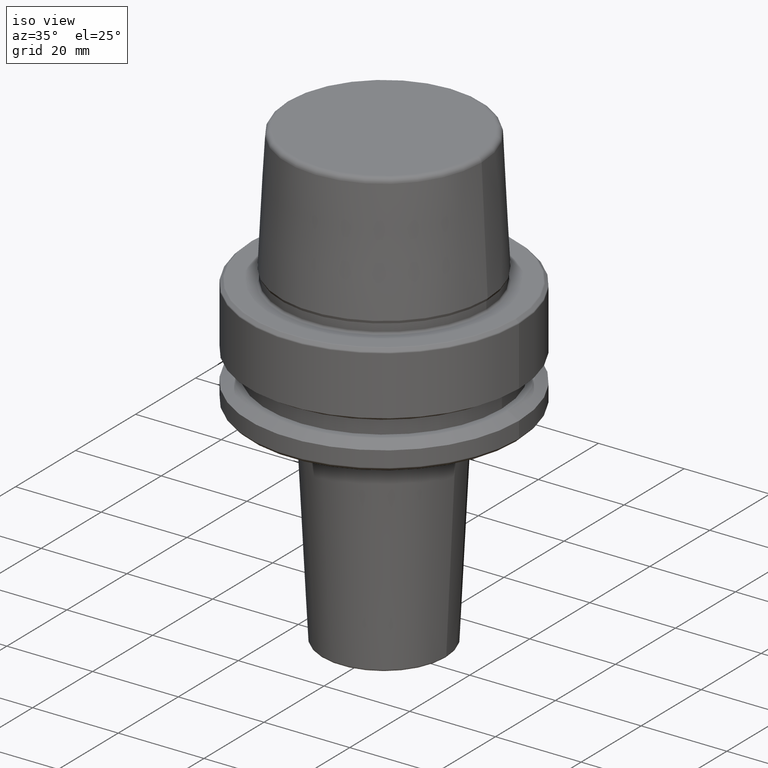
[diagram: clean part render]
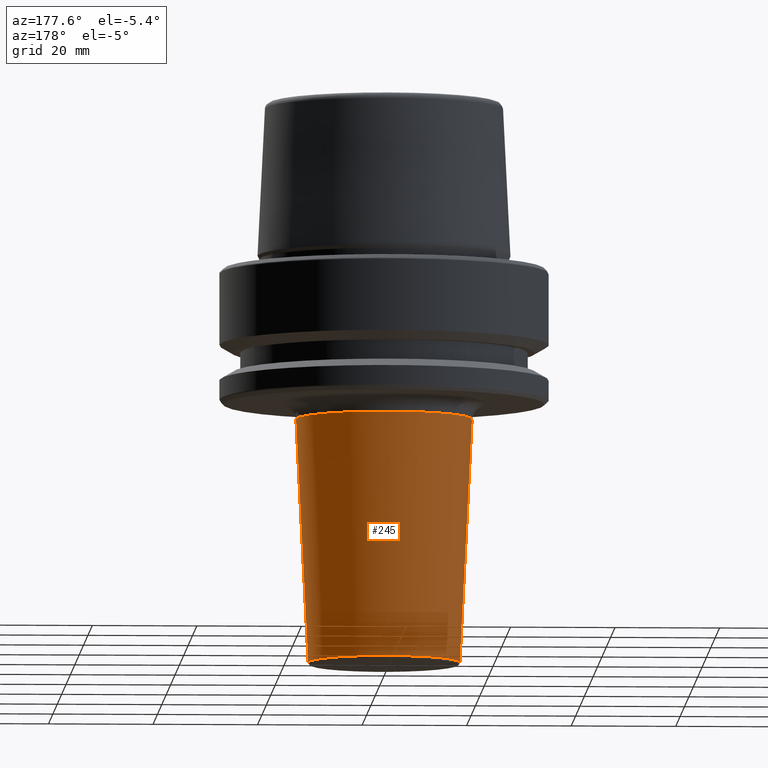
[diagram: tour spotlight — one face highlighted and labeled with its STEP entity id]
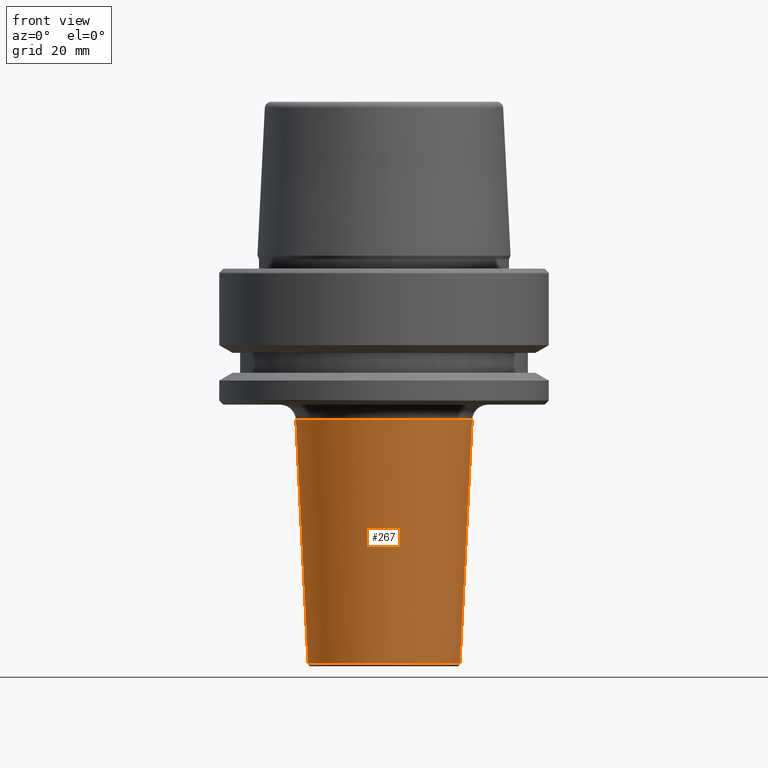
[diagram: tour spotlight — one face highlighted and labeled with its STEP entity id]
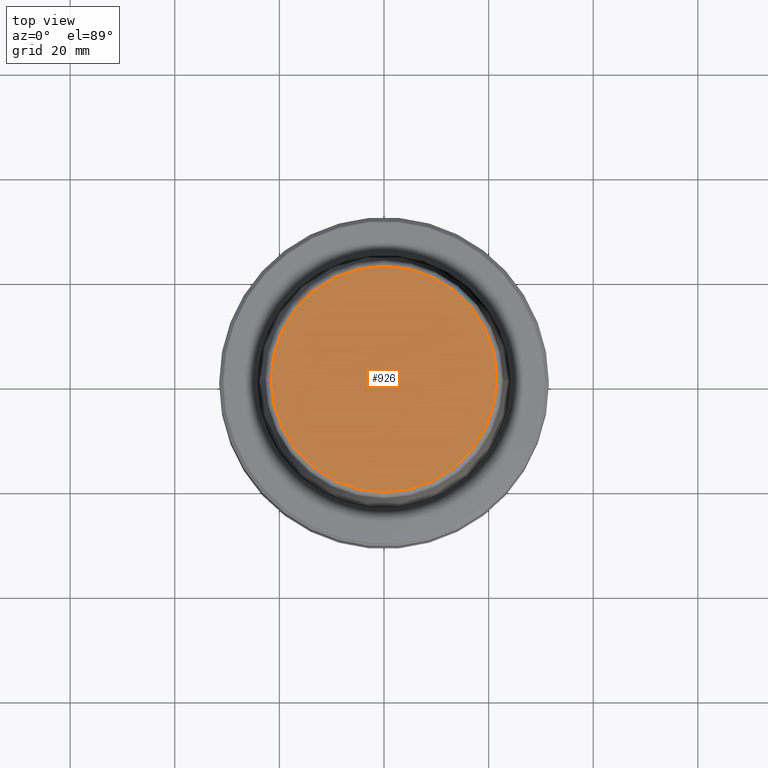
[diagram: tour spotlight — one face highlighted and labeled with its STEP entity id]
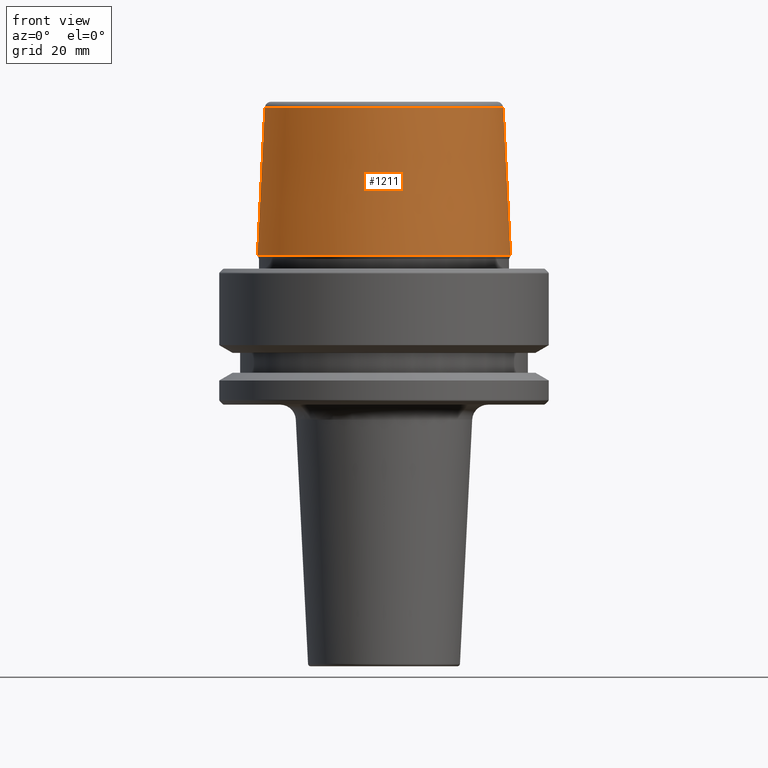
[diagram: tour spotlight — one face highlighted and labeled with its STEP entity id]
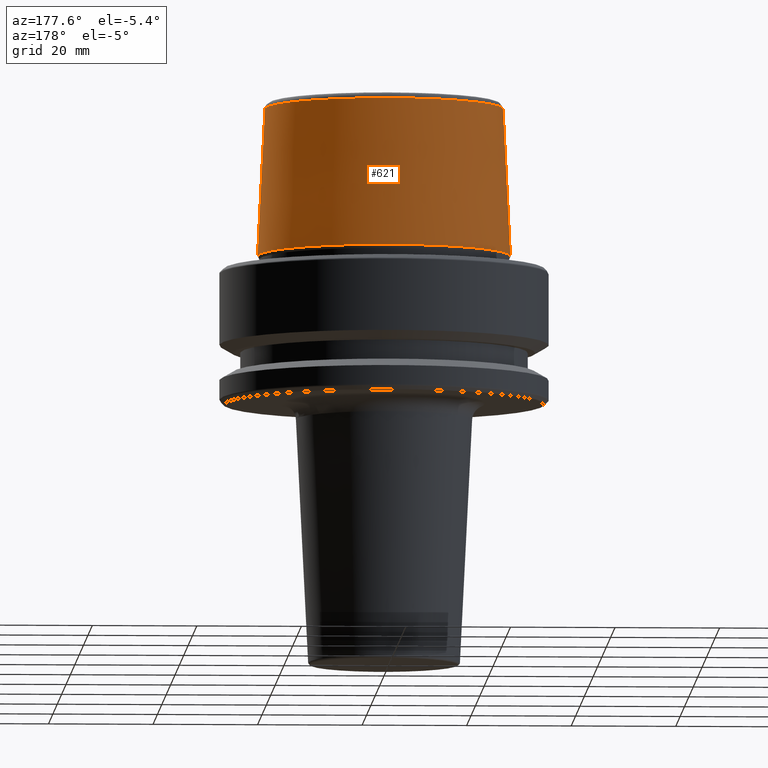
[diagram: tour spotlight — one face highlighted and labeled with its STEP entity id]
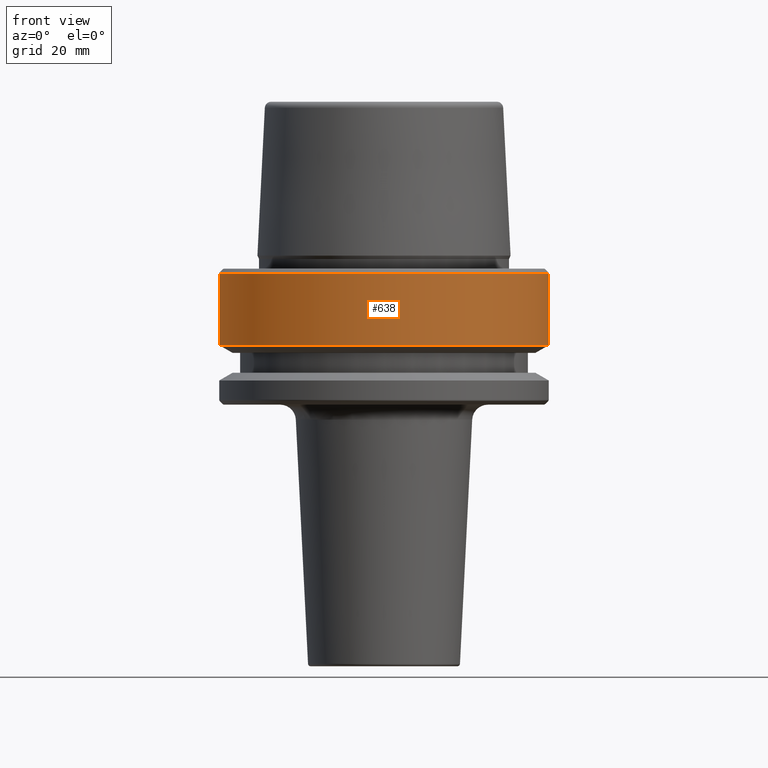
[diagram: tour spotlight — one face highlighted and labeled with its STEP entity id]
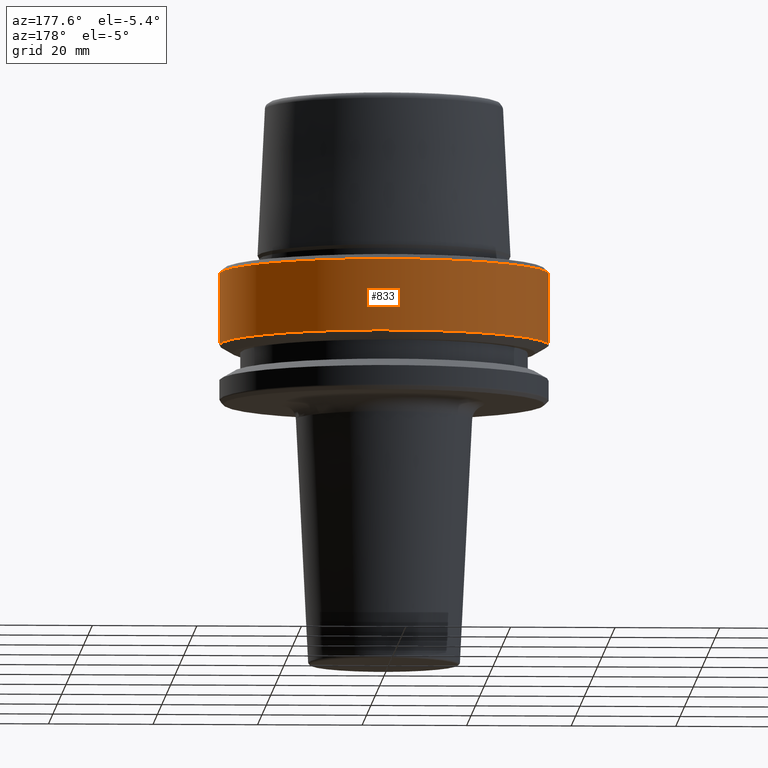
[diagram: tour spotlight — one face highlighted and labeled with its STEP entity id]
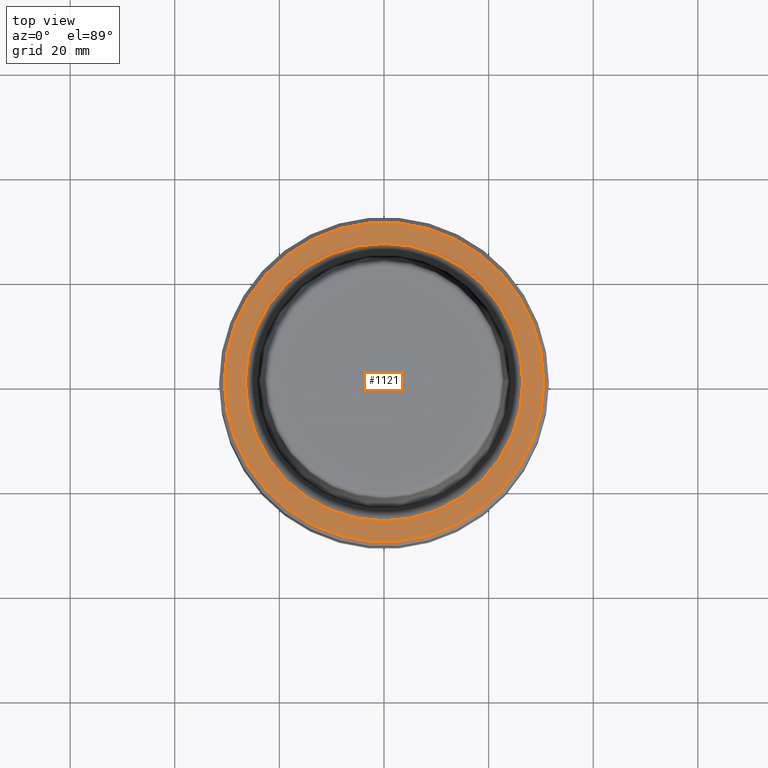
[diagram: tour spotlight — one face highlighted and labeled with its STEP entity id]
A machine part: a face-by-face anatomy tour. The part has 46 B-rep faces; the first image is the clean iso view, then the 8 largest visible faces are spotlighted one at a time (largest first), each with its STEP entity span.

Face 1 — auxiliary view, entity #245. In plain terms, the highlighted conical surface has half-angle 2.862 deg.
Definition (entity closure, byte-faithful):
#2 = LINE ( 'NONE', #545, #232 ) ;
#51 = DIRECTION ( 'NONE',  ( 1.000000000000000000, 0.0000000000000000000, 0.0000000000000000000 ) ) ;
#56 = AXIS2_PLACEMENT_3D ( 'NONE', #430, #804, #236 ) ;
#112 = CONICAL_SURFACE ( 'NONE', #1253, 16.99999999999998900, 0.04995839572194259900 ) ;
#156 = ORIENTED_EDGE ( 'NONE', *, *, #246, .T. ) ;
#176 = VERTEX_POINT ( 'NONE', #1015 ) ;
#232 = VECTOR ( 'NONE', #630, 1000.000000000000200 ) ;
#236 = DIRECTION ( 'NONE',  ( 1.000000000000000000, 0.0000000000000000000, 0.0000000000000000000 ) ) ;
#243 = VERTEX_POINT ( 'NONE', #626 ) ;
#244 = CARTESIAN_POINT ( 'NONE',  ( -14.52375155957640400, 1.921546890804580900E-015, -75.52496880847195400 ) ) ;
#245 = ADVANCED_FACE ( 'NONE', ( #572 ), #112, .T. ) ;
#246 = EDGE_CURVE ( 'NONE', #883, #329, #372, .T. ) ;
#318 = CARTESIAN_POINT ( 'NONE',  ( -16.99999999999998900, 2.081899558550499500E-015, -26.00000000000001100 ) ) ;
#329 = VERTEX_POINT ( 'NONE', #244 ) ;
#333 = EDGE_CURVE ( 'NONE', #243, #176, #778, .T. ) ;
#372 = CIRCLE ( 'NONE', #56, 14.52375155957640200 ) ;
#420 = LINE ( 'NONE', #318, #862 ) ;
#428 = EDGE_CURVE ( 'NONE', #883, #176, #2, .T. ) ;
#430 = CARTESIAN_POINT ( 'NONE',  ( 0.0000000000000000000, 0.0000000000000000000, -75.52496880847195400 ) ) ;
#545 = CARTESIAN_POINT ( 'NONE',  ( 16.99999999999998900, 0.0000000000000000000, -26.00000000000001100 ) ) ;
#572 = FACE_OUTER_BOUND ( 'NONE', #1025, .T. ) ;
#589 = ORIENTED_EDGE ( 'NONE', *, *, #333, .T. ) ;
#597 = ORIENTED_EDGE ( 'NONE', *, *, #1223, .T. ) ;
#626 = CARTESIAN_POINT ( 'NONE',  ( -16.85749064254157400, 2.064447195704499700E-015, -28.85018714916833500 ) ) ;
#630 = DIRECTION ( 'NONE',  ( 0.04993761694389208000, 0.0000000000000000000, 0.9987523388778446500 ) ) ;
#678 = DIRECTION ( 'NONE',  ( -0.04993761694389208000, 6.115594274738405400E-018, 0.9987523388778446500 ) ) ;
#684 = ORIENTED_EDGE ( 'NONE', *, *, #428, .F. ) ;
#758 = AXIS2_PLACEMENT_3D ( 'NONE', #1033, #938, #51 ) ;
#778 = CIRCLE ( 'NONE', #758, 16.85749064254157800 ) ;
#794 = CARTESIAN_POINT ( 'NONE',  ( 14.52375155957640200, 0.0000000000000000000, -75.52496880847195400 ) ) ;
#804 = DIRECTION ( 'NONE',  ( 0.0000000000000000000, 0.0000000000000000000, 1.000000000000000000 ) ) ;
#812 = CARTESIAN_POINT ( 'NONE',  ( 0.0000000000000000000, 0.0000000000000000000, -26.00000000000001100 ) ) ;
#862 = VECTOR ( 'NONE', #678, 1000.000000000000200 ) ;
#883 = VERTEX_POINT ( 'NONE', #794 ) ;
#938 = DIRECTION ( 'NONE',  ( -0.0000000000000000000, -0.0000000000000000000, -1.000000000000000000 ) ) ;
#987 = DIRECTION ( 'NONE',  ( 1.000000000000000000, 0.0000000000000000000, 0.0000000000000000000 ) ) ;
#1015 = CARTESIAN_POINT ( 'NONE',  ( 16.85749064254157400, 0.0000000000000000000, -28.85018714916833500 ) ) ;
#1025 = EDGE_LOOP ( 'NONE', ( #156, #597, #589, #684 ) ) ;
#1033 = CARTESIAN_POINT ( 'NONE',  ( 0.0000000000000000000, 0.0000000000000000000, -28.85018714916833500 ) ) ;
#1111 = DIRECTION ( 'NONE',  ( 0.0000000000000000000, 0.0000000000000000000, 1.000000000000000000 ) ) ;
#1223 = EDGE_CURVE ( 'NONE', #329, #243, #420, .T. ) ;
#1253 = AXIS2_PLACEMENT_3D ( 'NONE', #812, #1111, #987 ) ;

Face 2 — front view, entity #267. In plain terms, the highlighted conical surface has half-angle 2.862 deg.
Definition (entity closure, byte-faithful):
#2 = LINE ( 'NONE', #545, #232 ) ;
#52 = DIRECTION ( 'NONE',  ( 0.0000000000000000000, 0.0000000000000000000, 1.000000000000000000 ) ) ;
#91 = DIRECTION ( 'NONE',  ( 0.0000000000000000000, 0.0000000000000000000, 1.000000000000000000 ) ) ;
#176 = VERTEX_POINT ( 'NONE', #1015 ) ;
#190 = AXIS2_PLACEMENT_3D ( 'NONE', #722, #52, #807 ) ;
#222 = AXIS2_PLACEMENT_3D ( 'NONE', #1099, #1095, #1172 ) ;
#232 = VECTOR ( 'NONE', #630, 1000.000000000000200 ) ;
#243 = VERTEX_POINT ( 'NONE', #626 ) ;
#244 = CARTESIAN_POINT ( 'NONE',  ( -14.52375155957640400, 1.921546890804580900E-015, -75.52496880847195400 ) ) ;
#258 = CIRCLE ( 'NONE', #1051, 14.52375155957640200 ) ;
#267 = ADVANCED_FACE ( 'NONE', ( #927 ), #529, .T. ) ;
#318 = CARTESIAN_POINT ( 'NONE',  ( -16.99999999999998900, 2.081899558550499500E-015, -26.00000000000001100 ) ) ;
#329 = VERTEX_POINT ( 'NONE', #244 ) ;
#381 = ORIENTED_EDGE ( 'NONE', *, *, #754, .T. ) ;
#420 = LINE ( 'NONE', #318, #862 ) ;
#428 = EDGE_CURVE ( 'NONE', #883, #176, #2, .T. ) ;
#513 = ORIENTED_EDGE ( 'NONE', *, *, #1101, .T. ) ;
#529 = CONICAL_SURFACE ( 'NONE', #190, 16.99999999999998900, 0.04995839572194259900 ) ;
#545 = CARTESIAN_POINT ( 'NONE',  ( 16.99999999999998900, 0.0000000000000000000, -26.00000000000001100 ) ) ;
#626 = CARTESIAN_POINT ( 'NONE',  ( -16.85749064254157400, 2.064447195704499700E-015, -28.85018714916833500 ) ) ;
#630 = DIRECTION ( 'NONE',  ( 0.04993761694389208000, 0.0000000000000000000, 0.9987523388778446500 ) ) ;
#668 = ORIENTED_EDGE ( 'NONE', *, *, #1223, .F. ) ;
#678 = DIRECTION ( 'NONE',  ( -0.04993761694389208000, 6.115594274738405400E-018, 0.9987523388778446500 ) ) ;
#718 = ORIENTED_EDGE ( 'NONE', *, *, #428, .T. ) ;
#722 = CARTESIAN_POINT ( 'NONE',  ( 0.0000000000000000000, 0.0000000000000000000, -26.00000000000001100 ) ) ;
#736 = CARTESIAN_POINT ( 'NONE',  ( 0.0000000000000000000, 0.0000000000000000000, -75.52496880847195400 ) ) ;
#754 = EDGE_CURVE ( 'NONE', #329, #883, #258, .T. ) ;
#770 = EDGE_LOOP ( 'NONE', ( #668, #381, #718, #513 ) ) ;
#794 = CARTESIAN_POINT ( 'NONE',  ( 14.52375155957640200, 0.0000000000000000000, -75.52496880847195400 ) ) ;
#807 = DIRECTION ( 'NONE',  ( 1.000000000000000000, 0.0000000000000000000, 0.0000000000000000000 ) ) ;
#862 = VECTOR ( 'NONE', #678, 1000.000000000000200 ) ;
#883 = VERTEX_POINT ( 'NONE', #794 ) ;
#927 = FACE_OUTER_BOUND ( 'NONE', #770, .T. ) ;
#1015 = CARTESIAN_POINT ( 'NONE',  ( 16.85749064254157400, 0.0000000000000000000, -28.85018714916833500 ) ) ;
#1051 = AXIS2_PLACEMENT_3D ( 'NONE', #736, #91, #1142 ) ;
#1095 = DIRECTION ( 'NONE',  ( -0.0000000000000000000, -0.0000000000000000000, -1.000000000000000000 ) ) ;
#1099 = CARTESIAN_POINT ( 'NONE',  ( 0.0000000000000000000, 0.0000000000000000000, -28.85018714916833500 ) ) ;
#1101 = EDGE_CURVE ( 'NONE', #176, #243, #1192, .T. ) ;
#1142 = DIRECTION ( 'NONE',  ( 1.000000000000000000, 0.0000000000000000000, 0.0000000000000000000 ) ) ;
#1172 = DIRECTION ( 'NONE',  ( 1.000000000000000000, 0.0000000000000000000, 0.0000000000000000000 ) ) ;
#1192 = CIRCLE ( 'NONE', #222, 16.85749064254157800 ) ;
#1223 = EDGE_CURVE ( 'NONE', #329, #243, #420, .T. ) ;

Face 3 — top view, entity #926. In plain terms, the highlighted planar face has unit normal (0, 0, -1).
Definition (entity closure, byte-faithful):
#8 = CARTESIAN_POINT ( 'NONE',  ( 0.0000000000000000000, 0.0000000000000000000, 31.89999999999999900 ) ) ;
#48 = CIRCLE ( 'NONE', #829, 21.58108272732117100 ) ;
#106 = CARTESIAN_POINT ( 'NONE',  ( 21.58108272732117100, 0.0000000000000000000, 31.89999999999999900 ) ) ;
#108 = PLANE ( 'NONE',  #751 ) ;
#157 = VERTEX_POINT ( 'NONE', #813 ) ;
#179 = CARTESIAN_POINT ( 'NONE',  ( 0.0000000000000000000, 0.0000000000000000000, 31.89999999999999900 ) ) ;
#280 = DIRECTION ( 'NONE',  ( -0.0000000000000000000, -0.0000000000000000000, 1.000000000000000000 ) ) ;
#340 = EDGE_CURVE ( 'NONE', #157, #1227, #48, .T. ) ;
#458 = ORIENTED_EDGE ( 'NONE', *, *, #340, .T. ) ;
#504 = CARTESIAN_POINT ( 'NONE',  ( 0.0000000000000000000, 0.0000000000000000000, 31.89999999999999900 ) ) ;
#509 = ORIENTED_EDGE ( 'NONE', *, *, #674, .T. ) ;
#517 = DIRECTION ( 'NONE',  ( -0.0000000000000000000, -0.0000000000000000000, 1.000000000000000000 ) ) ;
#524 = AXIS2_PLACEMENT_3D ( 'NONE', #8, #280, #643 ) ;
#643 = DIRECTION ( 'NONE',  ( 1.000000000000000000, 0.0000000000000000000, 0.0000000000000000000 ) ) ;
#674 = EDGE_CURVE ( 'NONE', #1227, #157, #1116, .T. ) ;
#751 = AXIS2_PLACEMENT_3D ( 'NONE', #504, #880, #976 ) ;
#813 = CARTESIAN_POINT ( 'NONE',  ( -21.58108272732117100, 2.716307157494421400E-015, 31.89999999999999900 ) ) ;
#829 = AXIS2_PLACEMENT_3D ( 'NONE', #179, #517, #1248 ) ;
#880 = DIRECTION ( 'NONE',  ( 0.0000000000000000000, 0.0000000000000000000, -1.000000000000000000 ) ) ;
#926 = ADVANCED_FACE ( 'NONE', ( #1124 ), #108, .F. ) ;
#976 = DIRECTION ( 'NONE',  ( -1.000000000000000000, 0.0000000000000000000, -0.0000000000000000000 ) ) ;
#985 = EDGE_LOOP ( 'NONE', ( #509, #458 ) ) ;
#1116 = CIRCLE ( 'NONE', #524, 21.58108272732117100 ) ;
#1124 = FACE_OUTER_BOUND ( 'NONE', #985, .T. ) ;
#1227 = VERTEX_POINT ( 'NONE', #106 ) ;
#1248 = DIRECTION ( 'NONE',  ( 1.000000000000000000, 0.0000000000000000000, 0.0000000000000000000 ) ) ;

Face 4 — front view, entity #1211. In plain terms, the highlighted conical surface has half-angle 2.868 deg.
Definition (entity closure, byte-faithful):
#1 = ORIENTED_EDGE ( 'NONE', *, *, #612, .T. ) ;
#34 = CARTESIAN_POINT ( 'NONE',  ( 0.0000000000000000000, 0.0000000000000000000, 2.500000000000002200 ) ) ;
#39 = VECTOR ( 'NONE', #527, 1000.000000000000200 ) ;
#94 = DIRECTION ( 'NONE',  ( -0.0000000000000000000, -0.0000000000000000000, 1.000000000000000000 ) ) ;
#167 = CIRCLE ( 'NONE', #402, 22.77957961851797100 ) ;
#234 = VERTEX_POINT ( 'NONE', #1115 ) ;
#242 = ORIENTED_EDGE ( 'NONE', *, *, #656, .F. ) ;
#254 = EDGE_CURVE ( 'NONE', #671, #234, #617, .T. ) ;
#292 = VECTOR ( 'NONE', #653, 1000.000000000000200 ) ;
#314 = DIRECTION ( 'NONE',  ( 0.0000000000000000000, 0.0000000000000000000, -1.000000000000000000 ) ) ;
#324 = LINE ( 'NONE', #376, #292 ) ;
#376 = CARTESIAN_POINT ( 'NONE',  ( -24.19537568275369200, 0.0000000000000000000, 2.500000000000002200 ) ) ;
#389 = CONICAL_SURFACE ( 'NONE', #793, 24.19537568275369200, 0.05005701257455997400 ) ;
#397 = DIRECTION ( 'NONE',  ( 1.000000000000000000, 0.0000000000000000000, 0.0000000000000000000 ) ) ;
#402 = AXIS2_PLACEMENT_3D ( 'NONE', #871, #991, #1234 ) ;
#415 = CARTESIAN_POINT ( 'NONE',  ( -24.19537568275369200, 2.963078938405201500E-015, 2.500000000000002200 ) ) ;
#441 = VERTEX_POINT ( 'NONE', #1129 ) ;
#498 = DIRECTION ( 'NONE',  ( -1.000000000000000000, 0.0000000000000000000, 0.0000000000000000000 ) ) ;
#527 = DIRECTION ( 'NONE',  ( 0.05003611051310804400, 6.127656258166099700E-018, -0.9987474093306675200 ) ) ;
#536 = CIRCLE ( 'NONE', #1138, 24.19537568275369200 ) ;
#599 = VERTEX_POINT ( 'NONE', #415 ) ;
#612 = EDGE_CURVE ( 'NONE', #599, #234, #536, .T. ) ;
#617 = LINE ( 'NONE', #716, #39 ) ;
#653 = DIRECTION ( 'NONE',  ( -0.05003611051310804400, 0.0000000000000000000, -0.9987474093306675200 ) ) ;
#656 = EDGE_CURVE ( 'NONE', #441, #671, #167, .T. ) ;
#671 = VERTEX_POINT ( 'NONE', #1222 ) ;
#699 = ORIENTED_EDGE ( 'NONE', *, *, #1018, .T. ) ;
#716 = CARTESIAN_POINT ( 'NONE',  ( 24.19537568275369200, 2.963078938405201500E-015, 2.500000000000002200 ) ) ;
#793 = AXIS2_PLACEMENT_3D ( 'NONE', #34, #314, #498 ) ;
#871 = CARTESIAN_POINT ( 'NONE',  ( 0.0000000000000000000, 0.0000000000000000000, 30.76004333261571900 ) ) ;
#909 = ORIENTED_EDGE ( 'NONE', *, *, #254, .F. ) ;
#970 = CARTESIAN_POINT ( 'NONE',  ( 0.0000000000000000000, 0.0000000000000000000, 2.500000000000002200 ) ) ;
#991 = DIRECTION ( 'NONE',  ( -0.0000000000000000000, -0.0000000000000000000, 1.000000000000000000 ) ) ;
#1004 = EDGE_LOOP ( 'NONE', ( #909, #242, #699, #1 ) ) ;
#1018 = EDGE_CURVE ( 'NONE', #441, #599, #324, .T. ) ;
#1115 = CARTESIAN_POINT ( 'NONE',  ( 24.19537568275369200, 0.0000000000000000000, 2.500000000000002200 ) ) ;
#1129 = CARTESIAN_POINT ( 'NONE',  ( -22.77957961851797100, 0.0000000000000000000, 30.76004333261571900 ) ) ;
#1138 = AXIS2_PLACEMENT_3D ( 'NONE', #970, #94, #397 ) ;
#1185 = FACE_OUTER_BOUND ( 'NONE', #1004, .T. ) ;
#1211 = ADVANCED_FACE ( 'NONE', ( #1185 ), #389, .T. ) ;
#1222 = CARTESIAN_POINT ( 'NONE',  ( 22.77957961851797100, 2.876386432489616700E-015, 30.76004333261571900 ) ) ;
#1234 = DIRECTION ( 'NONE',  ( 1.000000000000000000, 0.0000000000000000000, 0.0000000000000000000 ) ) ;

Face 5 — auxiliary view, entity #621. In plain terms, the highlighted conical surface has half-angle 2.868 deg.
Definition (entity closure, byte-faithful):
#39 = VECTOR ( 'NONE', #527, 1000.000000000000200 ) ;
#70 = AXIS2_PLACEMENT_3D ( 'NONE', #120, #966, #528 ) ;
#74 = EDGE_CURVE ( 'NONE', #234, #599, #214, .T. ) ;
#120 = CARTESIAN_POINT ( 'NONE',  ( 0.0000000000000000000, 0.0000000000000000000, 2.500000000000002200 ) ) ;
#124 = ORIENTED_EDGE ( 'NONE', *, *, #884, .F. ) ;
#165 = DIRECTION ( 'NONE',  ( -0.0000000000000000000, -0.0000000000000000000, 1.000000000000000000 ) ) ;
#214 = CIRCLE ( 'NONE', #348, 24.19537568275369200 ) ;
#234 = VERTEX_POINT ( 'NONE', #1115 ) ;
#254 = EDGE_CURVE ( 'NONE', #671, #234, #617, .T. ) ;
#292 = VECTOR ( 'NONE', #653, 1000.000000000000200 ) ;
#324 = LINE ( 'NONE', #376, #292 ) ;
#348 = AXIS2_PLACEMENT_3D ( 'NONE', #439, #165, #717 ) ;
#373 = EDGE_LOOP ( 'NONE', ( #124, #727, #1063, #538 ) ) ;
#376 = CARTESIAN_POINT ( 'NONE',  ( -24.19537568275369200, 0.0000000000000000000, 2.500000000000002200 ) ) ;
#379 = AXIS2_PLACEMENT_3D ( 'NONE', #680, #605, #1077 ) ;
#415 = CARTESIAN_POINT ( 'NONE',  ( -24.19537568275369200, 2.963078938405201500E-015, 2.500000000000002200 ) ) ;
#439 = CARTESIAN_POINT ( 'NONE',  ( 0.0000000000000000000, 0.0000000000000000000, 2.500000000000002200 ) ) ;
#441 = VERTEX_POINT ( 'NONE', #1129 ) ;
#527 = DIRECTION ( 'NONE',  ( 0.05003611051310804400, 6.127656258166099700E-018, -0.9987474093306675200 ) ) ;
#528 = DIRECTION ( 'NONE',  ( -1.000000000000000000, 0.0000000000000000000, 0.0000000000000000000 ) ) ;
#538 = ORIENTED_EDGE ( 'NONE', *, *, #1018, .F. ) ;
#599 = VERTEX_POINT ( 'NONE', #415 ) ;
#605 = DIRECTION ( 'NONE',  ( -0.0000000000000000000, -0.0000000000000000000, 1.000000000000000000 ) ) ;
#617 = LINE ( 'NONE', #716, #39 ) ;
#621 = ADVANCED_FACE ( 'NONE', ( #1087 ), #701, .T. ) ;
#653 = DIRECTION ( 'NONE',  ( -0.05003611051310804400, 0.0000000000000000000, -0.9987474093306675200 ) ) ;
#671 = VERTEX_POINT ( 'NONE', #1222 ) ;
#680 = CARTESIAN_POINT ( 'NONE',  ( 0.0000000000000000000, 0.0000000000000000000, 30.76004333261571900 ) ) ;
#701 = CONICAL_SURFACE ( 'NONE', #70, 24.19537568275369200, 0.05005701257455997400 ) ;
#716 = CARTESIAN_POINT ( 'NONE',  ( 24.19537568275369200, 2.963078938405201500E-015, 2.500000000000002200 ) ) ;
#717 = DIRECTION ( 'NONE',  ( 1.000000000000000000, 0.0000000000000000000, 0.0000000000000000000 ) ) ;
#727 = ORIENTED_EDGE ( 'NONE', *, *, #254, .T. ) ;
#884 = EDGE_CURVE ( 'NONE', #671, #441, #1134, .T. ) ;
#966 = DIRECTION ( 'NONE',  ( 0.0000000000000000000, 0.0000000000000000000, -1.000000000000000000 ) ) ;
#1018 = EDGE_CURVE ( 'NONE', #441, #599, #324, .T. ) ;
#1063 = ORIENTED_EDGE ( 'NONE', *, *, #74, .T. ) ;
#1077 = DIRECTION ( 'NONE',  ( 1.000000000000000000, 0.0000000000000000000, 0.0000000000000000000 ) ) ;
#1087 = FACE_OUTER_BOUND ( 'NONE', #373, .T. ) ;
#1115 = CARTESIAN_POINT ( 'NONE',  ( 24.19537568275369200, 0.0000000000000000000, 2.500000000000002200 ) ) ;
#1129 = CARTESIAN_POINT ( 'NONE',  ( -22.77957961851797100, 0.0000000000000000000, 30.76004333261571900 ) ) ;
#1134 = CIRCLE ( 'NONE', #379, 22.77957961851797100 ) ;
#1222 = CARTESIAN_POINT ( 'NONE',  ( 22.77957961851797100, 2.876386432489616700E-015, 30.76004333261571900 ) ) ;

Face 6 — front view, entity #638. In plain terms, the highlighted cylindrical surface (partial cylindrical patch) has radius 31.5 mm, axis along (-0, -0, 1).
Definition (entity closure, byte-faithful):
#27 = DIRECTION ( 'NONE',  ( -0.0000000000000000000, -0.0000000000000000000, 1.000000000000000000 ) ) ;
#30 = CARTESIAN_POINT ( 'NONE',  ( 31.50000000000000000, 0.0000000000000000000, -0.9656854249492363700 ) ) ;
#40 = VERTEX_POINT ( 'NONE', #732 ) ;
#59 = EDGE_LOOP ( 'NONE', ( #610, #996, #226, #806 ) ) ;
#135 = CIRCLE ( 'NONE', #185, 31.50000000000000000 ) ;
#173 = VECTOR ( 'NONE', #872, 1000.000000000000000 ) ;
#185 = AXIS2_PLACEMENT_3D ( 'NONE', #1165, #1001, #694 ) ;
#206 = EDGE_CURVE ( 'NONE', #40, #265, #546, .T. ) ;
#218 = DIRECTION ( 'NONE',  ( 1.000000000000000000, 0.0000000000000000000, 0.0000000000000000000 ) ) ;
#221 = VECTOR ( 'NONE', #27, 1000.000000000000000 ) ;
#226 = ORIENTED_EDGE ( 'NONE', *, *, #1123, .T. ) ;
#255 = CARTESIAN_POINT ( 'NONE',  ( 0.0000000000000000000, 0.0000000000000000000, -14.62250092524070100 ) ) ;
#265 = VERTEX_POINT ( 'NONE', #342 ) ;
#293 = DIRECTION ( 'NONE',  ( -0.0000000000000000000, -0.0000000000000000000, 1.000000000000000000 ) ) ;
#328 = CARTESIAN_POINT ( 'NONE',  ( 31.50000000000000000, 0.0000000000000000000, 78.96908074195309300 ) ) ;
#342 = CARTESIAN_POINT ( 'NONE',  ( 31.50000000000000000, 0.0000000000000000000, -14.62250092524070100 ) ) ;
#345 = VERTEX_POINT ( 'NONE', #774 ) ;
#357 = DIRECTION ( 'NONE',  ( 1.000000000000000000, 0.0000000000000000000, 0.0000000000000000000 ) ) ;
#468 = AXIS2_PLACEMENT_3D ( 'NONE', #503, #293, #218 ) ;
#491 = EDGE_CURVE ( 'NONE', #40, #345, #660, .T. ) ;
#503 = CARTESIAN_POINT ( 'NONE',  ( 0.0000000000000000000, 0.0000000000000000000, 78.96908074195309300 ) ) ;
#546 = CIRCLE ( 'NONE', #999, 31.50000000000000000 ) ;
#610 = ORIENTED_EDGE ( 'NONE', *, *, #491, .F. ) ;
#638 = ADVANCED_FACE ( 'NONE', ( #761 ), #1104, .T. ) ;
#660 = LINE ( 'NONE', #1092, #221 ) ;
#694 = DIRECTION ( 'NONE',  ( 1.000000000000000000, 0.0000000000000000000, 0.0000000000000000000 ) ) ;
#732 = CARTESIAN_POINT ( 'NONE',  ( -31.50000000000000000, 3.857637417314162700E-015, -14.62250092524070100 ) ) ;
#761 = FACE_OUTER_BOUND ( 'NONE', #59, .T. ) ;
#774 = CARTESIAN_POINT ( 'NONE',  ( -31.50000000000000000, 3.857637417314162700E-015, -0.9656854249492363700 ) ) ;
#806 = ORIENTED_EDGE ( 'NONE', *, *, #878, .F. ) ;
#822 = DIRECTION ( 'NONE',  ( -0.0000000000000000000, -0.0000000000000000000, 1.000000000000000000 ) ) ;
#872 = DIRECTION ( 'NONE',  ( -0.0000000000000000000, -0.0000000000000000000, 1.000000000000000000 ) ) ;
#878 = EDGE_CURVE ( 'NONE', #345, #1168, #135, .T. ) ;
#905 = LINE ( 'NONE', #328, #173 ) ;
#996 = ORIENTED_EDGE ( 'NONE', *, *, #206, .T. ) ;
#999 = AXIS2_PLACEMENT_3D ( 'NONE', #255, #822, #357 ) ;
#1001 = DIRECTION ( 'NONE',  ( -0.0000000000000000000, -0.0000000000000000000, 1.000000000000000000 ) ) ;
#1092 = CARTESIAN_POINT ( 'NONE',  ( -31.50000000000000000, 3.857637417314162700E-015, 78.96908074195309300 ) ) ;
#1104 = CYLINDRICAL_SURFACE ( 'NONE', #468, 31.50000000000000000 ) ;
#1123 = EDGE_CURVE ( 'NONE', #265, #1168, #905, .T. ) ;
#1165 = CARTESIAN_POINT ( 'NONE',  ( 0.0000000000000000000, 0.0000000000000000000, -0.9656854249492363700 ) ) ;
#1168 = VERTEX_POINT ( 'NONE', #30 ) ;

Face 7 — auxiliary view, entity #833. In plain terms, the highlighted cylindrical surface (partial cylindrical patch) has radius 31.5 mm, axis along (-0, -0, 1).
Definition (entity closure, byte-faithful):
#27 = DIRECTION ( 'NONE',  ( -0.0000000000000000000, -0.0000000000000000000, 1.000000000000000000 ) ) ;
#30 = CARTESIAN_POINT ( 'NONE',  ( 31.50000000000000000, 0.0000000000000000000, -0.9656854249492363700 ) ) ;
#40 = VERTEX_POINT ( 'NONE', #732 ) ;
#44 = ORIENTED_EDGE ( 'NONE', *, *, #491, .T. ) ;
#103 = DIRECTION ( 'NONE',  ( 1.000000000000000000, 0.0000000000000000000, 0.0000000000000000000 ) ) ;
#121 = DIRECTION ( 'NONE',  ( 1.000000000000000000, 0.0000000000000000000, 0.0000000000000000000 ) ) ;
#140 = AXIS2_PLACEMENT_3D ( 'NONE', #975, #587, #103 ) ;
#160 = EDGE_CURVE ( 'NONE', #265, #40, #706, .T. ) ;
#173 = VECTOR ( 'NONE', #872, 1000.000000000000000 ) ;
#221 = VECTOR ( 'NONE', #27, 1000.000000000000000 ) ;
#229 = CARTESIAN_POINT ( 'NONE',  ( 0.0000000000000000000, 0.0000000000000000000, -14.62250092524070100 ) ) ;
#265 = VERTEX_POINT ( 'NONE', #342 ) ;
#317 = AXIS2_PLACEMENT_3D ( 'NONE', #1103, #322, #901 ) ;
#322 = DIRECTION ( 'NONE',  ( -0.0000000000000000000, -0.0000000000000000000, 1.000000000000000000 ) ) ;
#328 = CARTESIAN_POINT ( 'NONE',  ( 31.50000000000000000, 0.0000000000000000000, 78.96908074195309300 ) ) ;
#342 = CARTESIAN_POINT ( 'NONE',  ( 31.50000000000000000, 0.0000000000000000000, -14.62250092524070100 ) ) ;
#345 = VERTEX_POINT ( 'NONE', #774 ) ;
#374 = ORIENTED_EDGE ( 'NONE', *, *, #1123, .F. ) ;
#391 = CYLINDRICAL_SURFACE ( 'NONE', #317, 31.50000000000000000 ) ;
#491 = EDGE_CURVE ( 'NONE', #40, #345, #660, .T. ) ;
#587 = DIRECTION ( 'NONE',  ( -0.0000000000000000000, -0.0000000000000000000, 1.000000000000000000 ) ) ;
#629 = EDGE_CURVE ( 'NONE', #1168, #345, #986, .T. ) ;
#655 = AXIS2_PLACEMENT_3D ( 'NONE', #229, #1045, #121 ) ;
#660 = LINE ( 'NONE', #1092, #221 ) ;
#662 = FACE_OUTER_BOUND ( 'NONE', #1043, .T. ) ;
#706 = CIRCLE ( 'NONE', #655, 31.50000000000000000 ) ;
#732 = CARTESIAN_POINT ( 'NONE',  ( -31.50000000000000000, 3.857637417314162700E-015, -14.62250092524070100 ) ) ;
#746 = ORIENTED_EDGE ( 'NONE', *, *, #629, .F. ) ;
#774 = CARTESIAN_POINT ( 'NONE',  ( -31.50000000000000000, 3.857637417314162700E-015, -0.9656854249492363700 ) ) ;
#833 = ADVANCED_FACE ( 'NONE', ( #662 ), #391, .T. ) ;
#872 = DIRECTION ( 'NONE',  ( -0.0000000000000000000, -0.0000000000000000000, 1.000000000000000000 ) ) ;
#901 = DIRECTION ( 'NONE',  ( 1.000000000000000000, 0.0000000000000000000, 0.0000000000000000000 ) ) ;
#905 = LINE ( 'NONE', #328, #173 ) ;
#975 = CARTESIAN_POINT ( 'NONE',  ( 0.0000000000000000000, 0.0000000000000000000, -0.9656854249492363700 ) ) ;
#986 = CIRCLE ( 'NONE', #140, 31.50000000000000000 ) ;
#1008 = ORIENTED_EDGE ( 'NONE', *, *, #160, .T. ) ;
#1043 = EDGE_LOOP ( 'NONE', ( #1008, #44, #746, #374 ) ) ;
#1045 = DIRECTION ( 'NONE',  ( -0.0000000000000000000, -0.0000000000000000000, 1.000000000000000000 ) ) ;
#1092 = CARTESIAN_POINT ( 'NONE',  ( -31.50000000000000000, 3.857637417314162700E-015, 78.96908074195309300 ) ) ;
#1103 = CARTESIAN_POINT ( 'NONE',  ( 0.0000000000000000000, 0.0000000000000000000, 78.96908074195309300 ) ) ;
#1123 = EDGE_CURVE ( 'NONE', #265, #1168, #905, .T. ) ;
#1168 = VERTEX_POINT ( 'NONE', #30 ) ;

Face 8 — top view, entity #1121. In plain terms, the highlighted planar face has unit normal (0, 0, -1).
Definition (entity closure, byte-faithful):
#14 = CARTESIAN_POINT ( 'NONE',  ( 0.0000000000000000000, 26.52499999999999900, -1.111307226797642000E-015 ) ) ;
#21 = CARTESIAN_POINT ( 'NONE',  ( -30.53431457505076100, 3.756694181974138600E-015, 0.0000000000000000000 ) ) ;
#26 = AXIS2_PLACEMENT_3D ( 'NONE', #669, #971, #555 ) ;
#33 = DIRECTION ( 'NONE',  ( 1.000000000000000000, 0.0000000000000000000, 0.0000000000000000000 ) ) ;
#111 = CARTESIAN_POINT ( 'NONE',  ( 0.0000000000000000000, 0.0000000000000000000, 0.0000000000000000000 ) ) ;
#114 = DIRECTION ( 'NONE',  ( -0.0000000000000000000, -0.0000000000000000000, 1.000000000000000000 ) ) ;
#130 = PLANE ( 'NONE',  #477 ) ;
#151 = DIRECTION ( 'NONE',  ( -0.0000000000000000000, -0.0000000000000000000, 1.000000000000000000 ) ) ;
#152 = EDGE_CURVE ( 'NONE', #338, #1245, #747, .T. ) ;
#154 = CIRCLE ( 'NONE', #941, 26.52499999999999900 ) ;
#166 = CIRCLE ( 'NONE', #931, 30.53431457505076100 ) ;
#262 = CIRCLE ( 'NONE', #26, 26.52499999999999900 ) ;
#313 = VERTEX_POINT ( 'NONE', #766 ) ;
#338 = VERTEX_POINT ( 'NONE', #560 ) ;
#347 = CARTESIAN_POINT ( 'NONE',  ( 0.0000000000000000000, 0.0000000000000000000, 0.0000000000000000000 ) ) ;
#426 = FACE_BOUND ( 'NONE', #735, .T. ) ;
#459 = FACE_OUTER_BOUND ( 'NONE', #946, .T. ) ;
#477 = AXIS2_PLACEMENT_3D ( 'NONE', #14, #777, #881 ) ;
#486 = CARTESIAN_POINT ( 'NONE',  ( -26.52499999999999900, 3.248375634738354300E-015, 0.0000000000000000000 ) ) ;
#487 = DIRECTION ( 'NONE',  ( -0.0000000000000000000, -0.0000000000000000000, 1.000000000000000000 ) ) ;
#555 = DIRECTION ( 'NONE',  ( 1.000000000000000000, 0.0000000000000000000, 0.0000000000000000000 ) ) ;
#560 = CARTESIAN_POINT ( 'NONE',  ( 30.53431457505076100, 0.0000000000000000000, 0.0000000000000000000 ) ) ;
#592 = EDGE_CURVE ( 'NONE', #313, #957, #154, .T. ) ;
#596 = AXIS2_PLACEMENT_3D ( 'NONE', #347, #151, #627 ) ;
#627 = DIRECTION ( 'NONE',  ( 1.000000000000000000, 0.0000000000000000000, 0.0000000000000000000 ) ) ;
#669 = CARTESIAN_POINT ( 'NONE',  ( 0.0000000000000000000, 0.0000000000000000000, 0.0000000000000000000 ) ) ;
#735 = EDGE_LOOP ( 'NONE', ( #1093, #1110 ) ) ;
#747 = CIRCLE ( 'NONE', #596, 30.53431457505076100 ) ;
#766 = CARTESIAN_POINT ( 'NONE',  ( 26.52499999999999900, 0.0000000000000000000, 0.0000000000000000000 ) ) ;
#777 = DIRECTION ( 'NONE',  ( 0.0000000000000000000, 0.0000000000000000000, -1.000000000000000000 ) ) ;
#881 = DIRECTION ( 'NONE',  ( -1.000000000000000000, 0.0000000000000000000, -0.0000000000000000000 ) ) ;
#885 = ORIENTED_EDGE ( 'NONE', *, *, #1217, .T. ) ;
#931 = AXIS2_PLACEMENT_3D ( 'NONE', #111, #487, #1162 ) ;
#941 = AXIS2_PLACEMENT_3D ( 'NONE', #1085, #114, #33 ) ;
#946 = EDGE_LOOP ( 'NONE', ( #958, #885 ) ) ;
#957 = VERTEX_POINT ( 'NONE', #486 ) ;
#958 = ORIENTED_EDGE ( 'NONE', *, *, #152, .T. ) ;
#971 = DIRECTION ( 'NONE',  ( -0.0000000000000000000, -0.0000000000000000000, 1.000000000000000000 ) ) ;
#1038 = EDGE_CURVE ( 'NONE', #957, #313, #262, .T. ) ;
#1085 = CARTESIAN_POINT ( 'NONE',  ( 0.0000000000000000000, 0.0000000000000000000, 0.0000000000000000000 ) ) ;
#1093 = ORIENTED_EDGE ( 'NONE', *, *, #592, .F. ) ;
#1110 = ORIENTED_EDGE ( 'NONE', *, *, #1038, .F. ) ;
#1121 = ADVANCED_FACE ( 'NONE', ( #426, #459 ), #130, .F. ) ;
#1162 = DIRECTION ( 'NONE',  ( 1.000000000000000000, 0.0000000000000000000, 0.0000000000000000000 ) ) ;
#1217 = EDGE_CURVE ( 'NONE', #1245, #338, #166, .T. ) ;
#1245 = VERTEX_POINT ( 'NONE', #21 ) ;